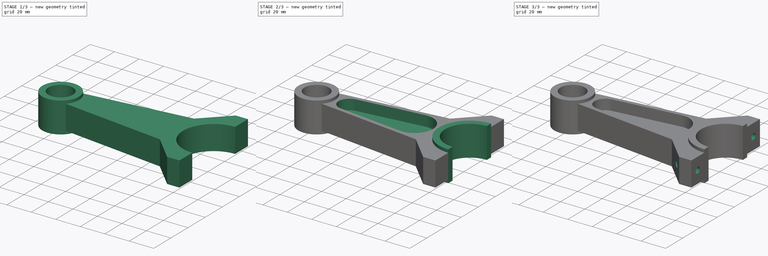
[diagram: build sequence overview — one tinted view per stage of 3, left to right]
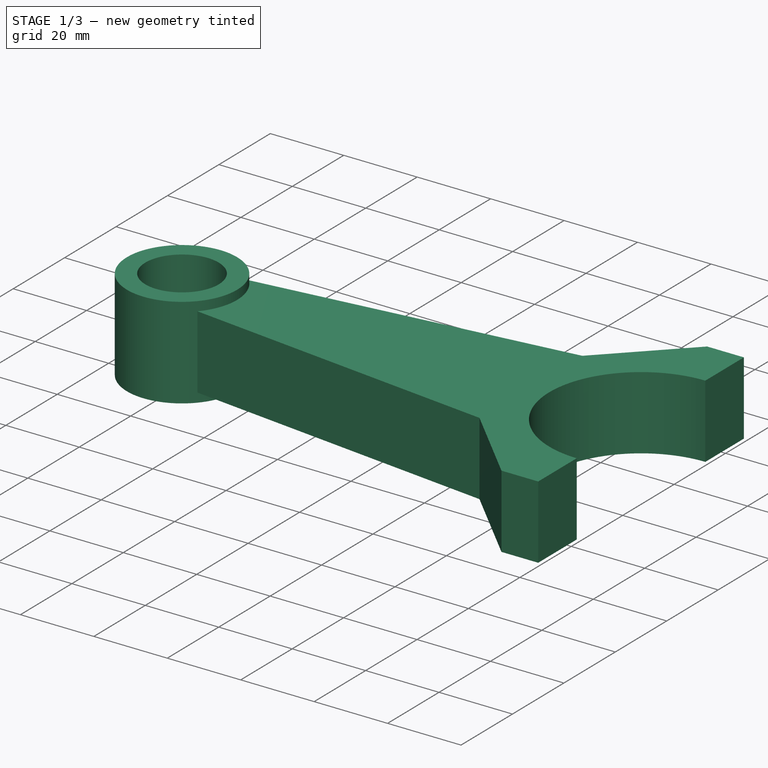
[diagram: stage 1 of 3 — iso view after this stage's code; geometry added in this stage tinted green]
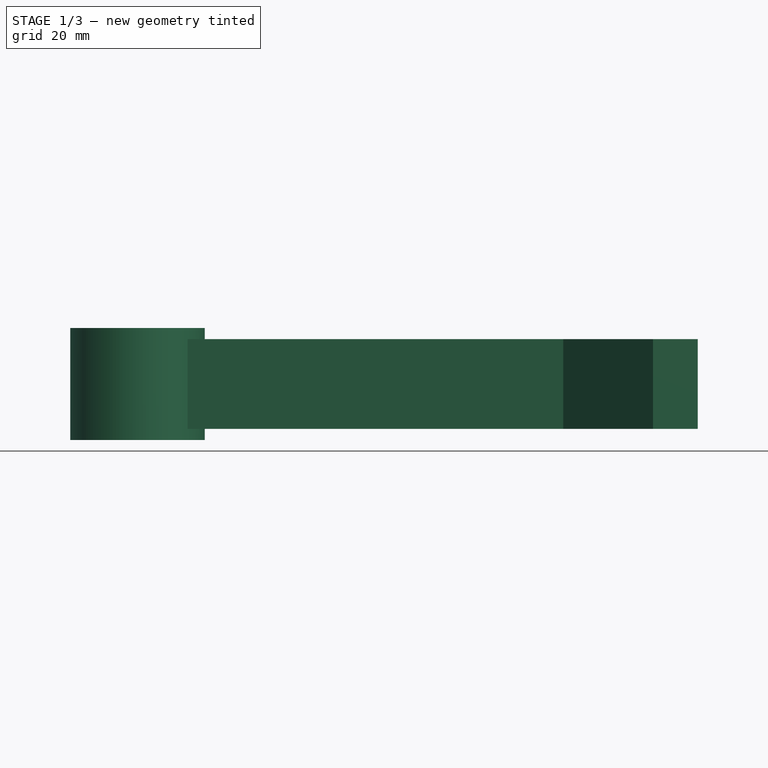
[diagram: stage 1 of 3 — front view after this stage's code; geometry added in this stage tinted green]
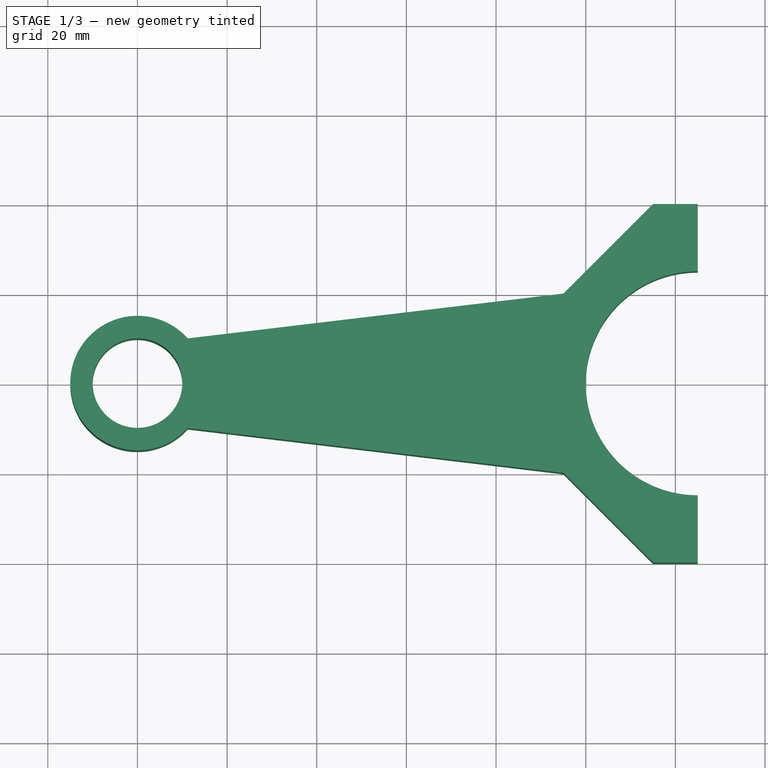
[diagram: stage 1 of 3 — top view after this stage's code; geometry added in this stage tinted green]
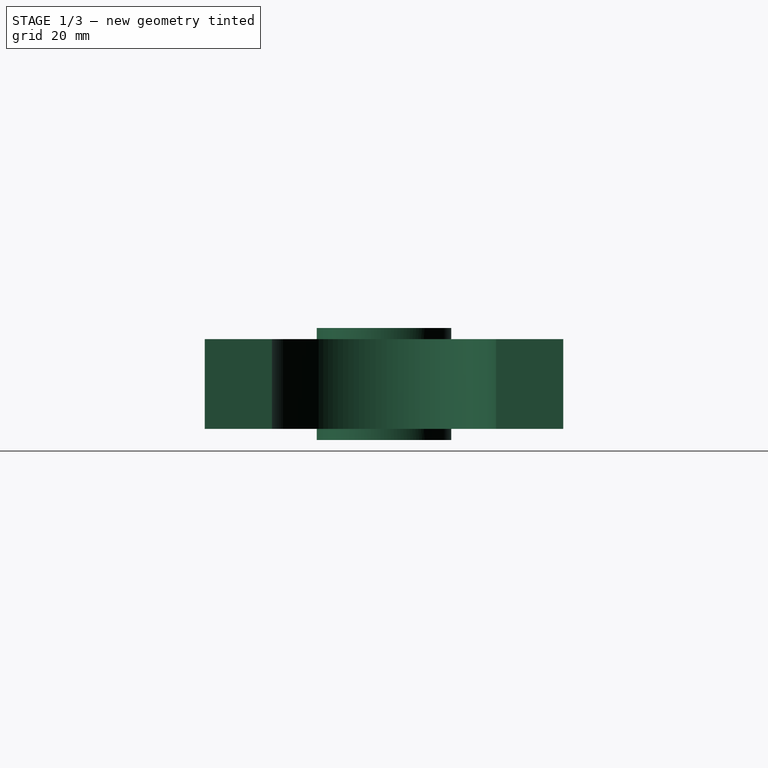
[diagram: stage 1 of 3 — right view after this stage's code; geometry added in this stage tinted green]
FCSTD DOCUMENT  (FreeCAD 0.18R16268 (Git))
Label: Bielle
License: All rights reserved
LicenseURL: http://en.wikipedia.org/wiki/All_rights_reserved
objects: Sketcher::SketchObject×6, PartDesign::Pad×3, PartDesign::CoordinateSystem×2, PartDesign::Plane×2, PartDesign::Pocket×2, App::DocumentObjectGroup×1, PartDesign::Mirrored×1, PartDesign::Body×1, App::Part×1
note: 22 computed .brp shape members not serialized (recipe doc carries the construction recipe); baked Part::Feature solids carry a one-line shape summary decoded from their .brp

FEATURE [App::DocumentObjectGroup] Constraints
FEATURE [PartDesign::CoordinateSystem] LCS_0
  AttacherType = Attacher::AttachEngine3D
FEATURE [PartDesign::Plane] DatumPlane
  AttachmentOffset = pos=(0,0,1.5) rot=(0,0,1;0rad)
  Length = 161.166
  MapMode = 5
  Placement = pos=(0,0,1.5) rot=(0,0,1;0rad)
  ResizeMode = 0
  Support = -> [LCS_0]
  Width = 101.166
FEATURE [Sketcher::SketchObject] Sketch  label="Length"
  MapMode = 5
  Support = -> [XY_Plane001]
  sketch-geometry (1):
    g0: LineSegment StartX=0 StartY=0 StartZ=0 EndX=125 EndY=0 EndZ=0
  constraints (3):
    c: Horizontal(g0)
    c: DistanceX(g0,g0) = 125
    c: Coincident(g-1,g0)
FEATURE [PartDesign::Plane] DatumPlane001
  Length = 88.9443
  MapMode = 7
  Placement = pos=(125,0,0) rot=(0.57735,-0.57735,-0.57735;2.0944rad)
  ResizeMode = 0
  Support = -> [Sketch]
  Width = 33.9443
FEATURE [Sketcher::SketchObject] Sketch006
  MapMode = 5
  Placement = pos=(125,0,0) rot=(0.57735,-0.57735,-0.57735;2.0944rad)
  Support = -> [DatumPlane001]
  sketch-geometry (2):
    g0: Circle CenterX=-32.5 CenterY=0 CenterZ=0 NormalX=0 NormalY=0 NormalZ=1 AngleXU=0 Radius=2.5
    g1: Circle CenterX=32.5 CenterY=0 CenterZ=0 NormalX=0 NormalY=0 NormalZ=1 AngleXU=0 Radius=2.5
  constraints (5):
    c: Symmetric(g0,g1,g-2)
    c: PointOnObject(g1,g-1)
    c: Equal(g0,g1)
    c: Diameter(g0) = 5
    c: DistanceX(g0,g1) = 65
FEATURE [Sketcher::SketchObject] Sketch001
  MapMode = 5
  Support = -> [XY_Plane001]
  sketch-geometry (2):
    g0: Circle CenterX=0 CenterY=0 CenterZ=0 NormalX=0 NormalY=0 NormalZ=1 AngleXU=0 Radius=10
    g1: Circle CenterX=0 CenterY=0 CenterZ=0 NormalX=0 NormalY=0 NormalZ=1 AngleXU=0 Radius=15
  constraints (4):
    c: Coincident(g0,g-1)
    c: Diameter(g0) = 20
    c: Diameter(g1) = 30
    c: Coincident(g1,g0)
FEATURE [PartDesign::Pad] Pad
  ClaimChildren = false
  Length = 25
  Length2 = 100
  Midplane = true
  Profile = -> Sketch001
  Type = 0
FEATURE [Sketcher::SketchObject] Sketch003
  ExternalGeometry = -> [Sketch]
  MapMode = 5
  Support = -> [XY_Plane001]
  sketch-geometry (4):
    g0: ArcOfCircle CenterX=125 CenterY=0 CenterZ=0 NormalX=0 NormalY=0 NormalZ=1 AngleXU=0 Radius=20 StartAngle=1.5708 EndAngle=4.71239
    g1: ArcOfCircle CenterX=125 CenterY=0 CenterZ=0 NormalX=0 NormalY=0 NormalZ=1 AngleXU=0 Radius=25 StartAngle=1.5708 EndAngle=4.71239
    g2: LineSegment StartX=125 StartY=25 StartZ=0 EndX=125 EndY=20 EndZ=0
    g3: LineSegment StartX=125 StartY=-20 StartZ=0 EndX=125 EndY=-25 EndZ=0
  constraints (12):
    c: Coincident(g0,g-3)
    c: Coincident(g1,g0)
    c: Coincident(g2,g1)
    c: Coincident(g2,g0)
    c: Coincident(g3,g0)
    c: Coincident(g3,g1)
    c: Vertical(g2)
    c: Vertical(g3)
    c: PointOnObject(g0,g2)
    c: PointOnObject(g0,g3)
    c: DistanceY(g2,g2) = 5
    c: Diameter(g0) = 40
FEATURE [Sketcher::SketchObject] Sketch004
  ExternalGeometry = -> [Sketch001,Sketch003]
  MapMode = 5
  Support = -> [XY_Plane001]
  sketch-geometry (10):
    g0: LineSegment StartX=125 StartY=25 StartZ=0 EndX=125 EndY=40 EndZ=0
    g1: LineSegment StartX=125 StartY=40 StartZ=0 EndX=115 EndY=40 EndZ=0
    g2: LineSegment StartX=115 StartY=40 StartZ=0 EndX=95 EndY=20 EndZ=0
    g3: LineSegment StartX=95 StartY=20 StartZ=0 EndX=11.1803 EndY=10 EndZ=0
    g4: LineSegment StartX=11.1803 StartY=-10 StartZ=0 EndX=95 EndY=-20 EndZ=0
    g5: LineSegment StartX=95 StartY=-20 StartZ=0 EndX=115 EndY=-40 EndZ=0
    g6: LineSegment StartX=115 StartY=-40 StartZ=0 EndX=125 EndY=-40 EndZ=0
    g7: LineSegment StartX=125 StartY=-40 StartZ=0 EndX=125 EndY=-25 EndZ=0
    g8: ArcOfCircle CenterX=125 CenterY=8e-16 CenterZ=0 NormalX=0 NormalY=0 NormalZ=1 AngleXU=0 Radius=25 StartAngle=1.5708 EndAngle=4.71239
    g9: ArcOfCircle CenterX=0 CenterY=-9e-16 CenterZ=0 NormalX=0 NormalY=0 NormalZ=1 AngleXU=0 Radius=15 StartAngle=5.55346 EndAngle=7.01291
  constraints (27):
    c: Coincident(g0,g1)
    c: Coincident(g1,g2)
    c: Coincident(g2,g3)
    c: PointOnObject(g3,g-3)
    c: Coincident(g4,g5)
    c: Coincident(g5,g6)
    c: Coincident(g6,g7)
    c: Coincident(g7,g-4)
    c: Vertical(g0)
    c: Symmetric(g3,g4,g-1)
    c: DistanceY(g4,g2) = 40
    c: Symmetric(g2,g4,g-1)
    c: Horizontal(g1)
    c: DistanceY(g6,g0) = 80
    c: Symmetric(g0,g6,g-1)
    c: Symmetric(g1,g5,g-1)
    c: DistanceX(g1,g1) = 10
    c: Angle(g2,g1) = 2.35619
    c: DistanceY(g4,g3) = 20
    c: Coincident(g8,g7)
    c: Coincident(g9,g3)
    c: Coincident(g9,g4)
    c: Coincident(g9,g-1)
    c: Parallel(g7,g0)
    c: Coincident(g0,g8)
    c: PointOnObject(g0,g-5)
    c: PointOnObject(g8,g7)
FEATURE [Sketcher::SketchObject] Sketch005
  ExternalGeometry = -> [Sketch004,Sketch001,Sketch003]
  MapMode = 5
  Placement = pos=(0,0,1.5) rot=(0,0,1;0rad)
  Support = -> [DatumPlane]
  sketch-geometry (8):
    g0: ArcOfCircle CenterX=26.7773 CenterY=0 CenterZ=0 NormalX=0 NormalY=0 NormalZ=1 AngleXU=0 Radius=8.77725 StartAngle=1.68954 EndAngle=4.59365
    g1: ArcOfCircle CenterX=79.9265 CenterY=0 CenterZ=0 NormalX=0 NormalY=0 NormalZ=1 AngleXU=0 Radius=15.0735 StartAngle=4.59365 EndAngle=7.97272
    g2: LineSegment StartX=25.7375 StartY=8.71545 StartZ=0 EndX=78.1408 EndY=14.9674 EndZ=0
    g3: LineSegment StartX=25.7375 StartY=-8.71545 StartZ=0 EndX=78.1408 EndY=-14.9674 EndZ=0
    g4: GeomPoint X=18 Y=0 Z=0
    g5: GeomPoint X=15 Y=0 Z=0
    g6: GeomPoint X=95 Y=0 Z=0
    g7: GeomPoint X=100 Y=0 Z=0
  constraints (18):
    c: PointOnObject(g0,g-1)
    c: PointOnObject(g1,g-1)
    c: Tangent(g2,g1) = 1.5708
    c: Tangent(g3,g1) = -1.5708
    c: Tangent(g2,g0) = 1.5708
    c: Tangent(g3,g0) = -1.5708
    c: PointOnObject(g5,g-4)
    c: Horizontal(g5,g0)
    c: Horizontal(g4,g0)
    c: PointOnObject(g4,g0)
    c: PointOnObject(g6,g1)
    c: Horizontal(g6,g1)
    c: Parallel(g2,g-5)
    c: Distance(g5,g4) = 3
    c: Distance(g0,g-5) = 3
    c: PointOnObject(g7,g-6)
    c: PointOnObject(g7,g-1)
    c: DistanceX(g6,g7) = 5
FEATURE [PartDesign::Pad] Pad001
  BaseFeature = -> Pad
  ClaimChildren = false
  Length = 20
  Length2 = 100
  Midplane = true
  Profile = -> Sketch004
  Type = 0
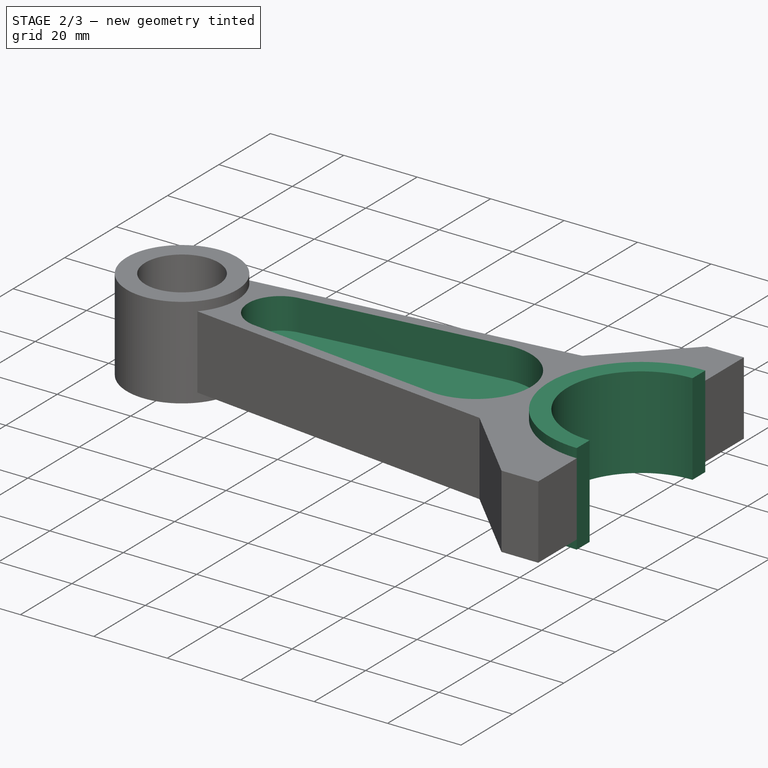
[diagram: stage 2 of 3 — iso view after this stage's code; geometry added in this stage tinted green]
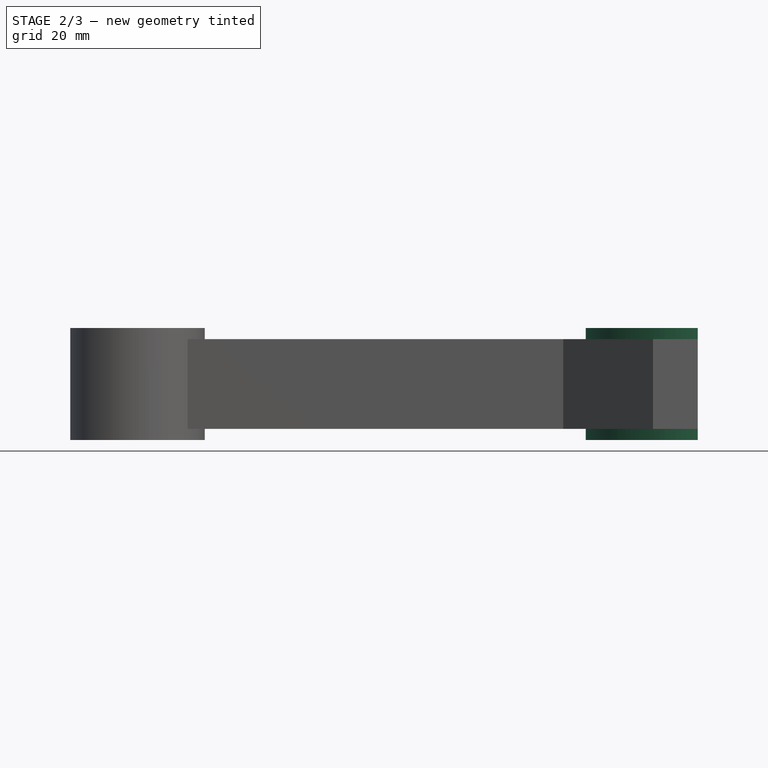
[diagram: stage 2 of 3 — front view after this stage's code; geometry added in this stage tinted green]
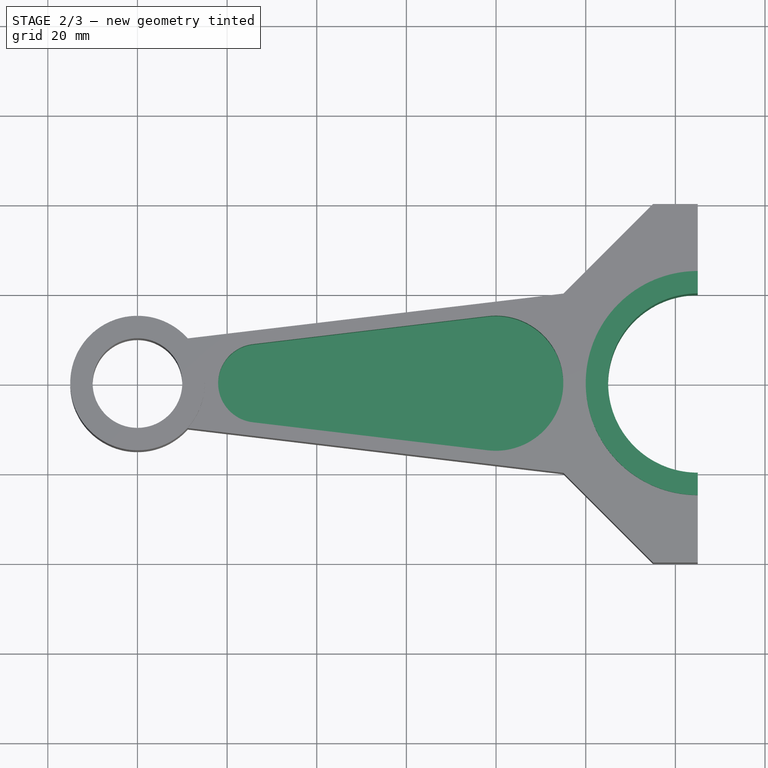
[diagram: stage 2 of 3 — top view after this stage's code; geometry added in this stage tinted green]
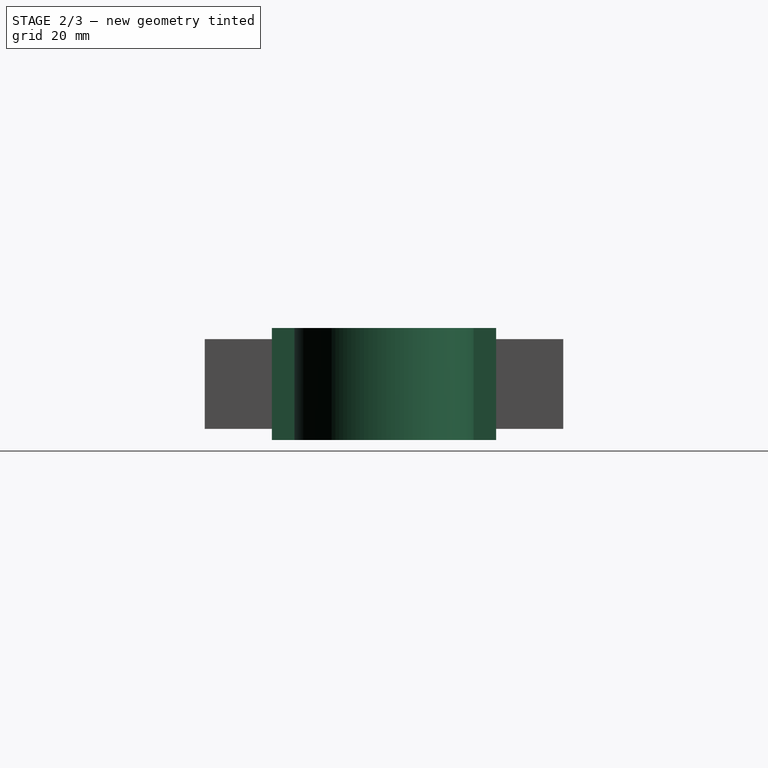
[diagram: stage 2 of 3 — right view after this stage's code; geometry added in this stage tinted green]
FEATURE [PartDesign::Pad] Pad002
  BaseFeature = -> Pad001
  ClaimChildren = false
  Length = 25
  Length2 = 100
  Midplane = true
  Profile = -> Sketch003
  Type = 0
FEATURE [PartDesign::Pocket] Pocket
  BaseFeature = -> Pad002
  ClaimChildren = false
  Length = 5
  Length2 = 100
  Profile = -> Sketch005
  Reversed = true
  Type = 1
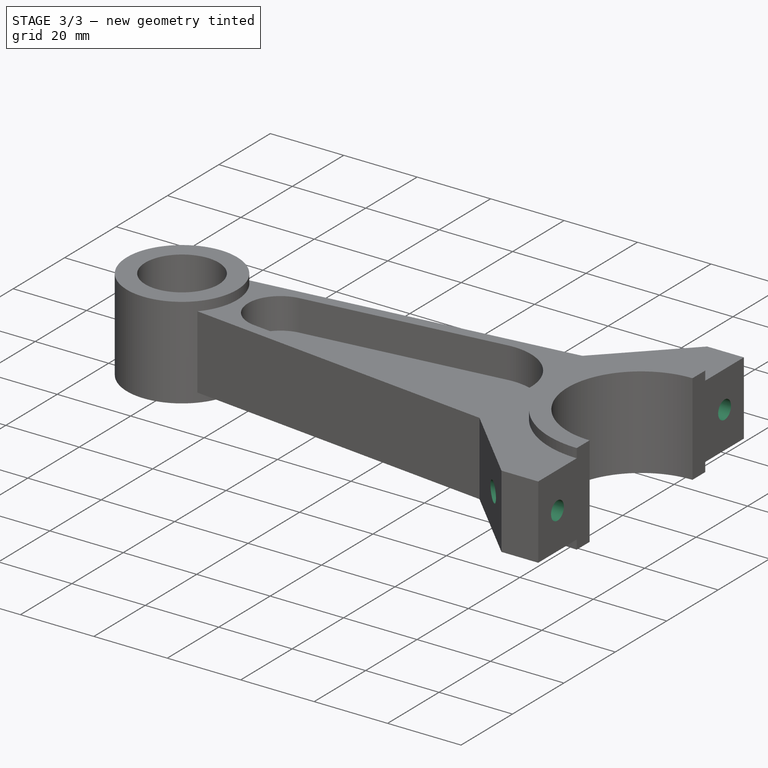
[diagram: stage 3 of 3 — iso view after this stage's code; geometry added in this stage tinted green]
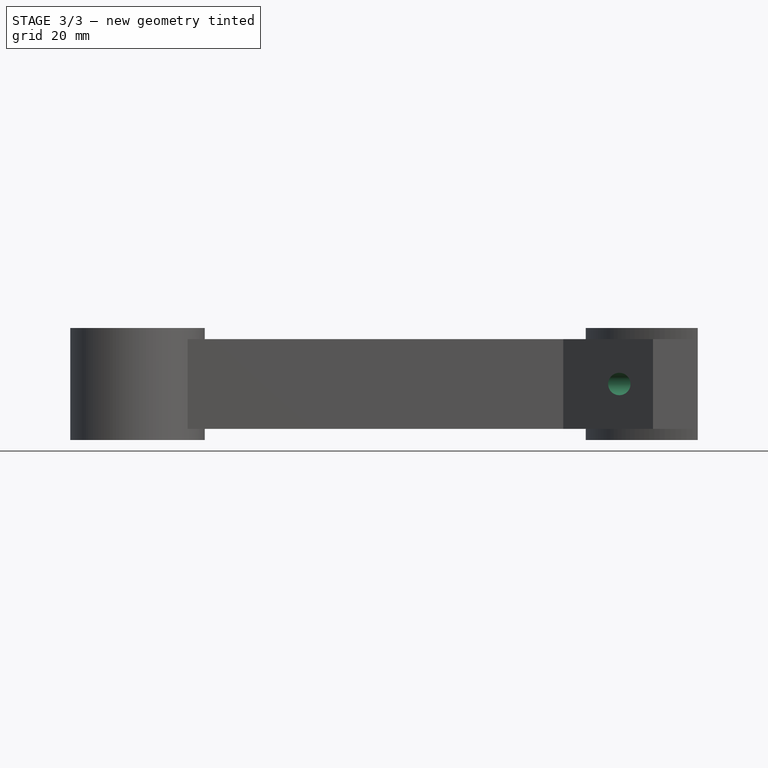
[diagram: stage 3 of 3 — front view after this stage's code; geometry added in this stage tinted green]
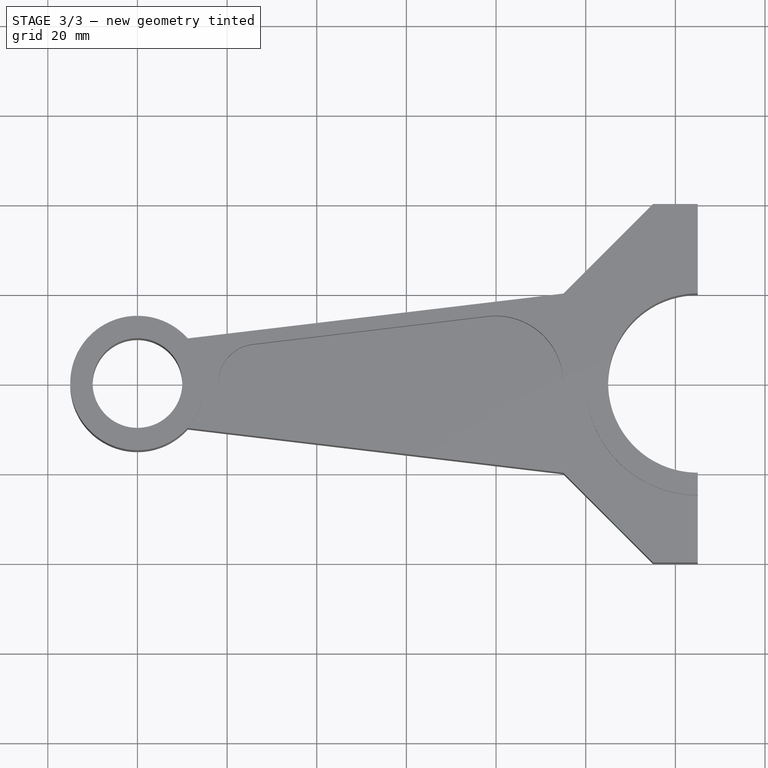
[diagram: stage 3 of 3 — top view after this stage's code; geometry added in this stage tinted green]
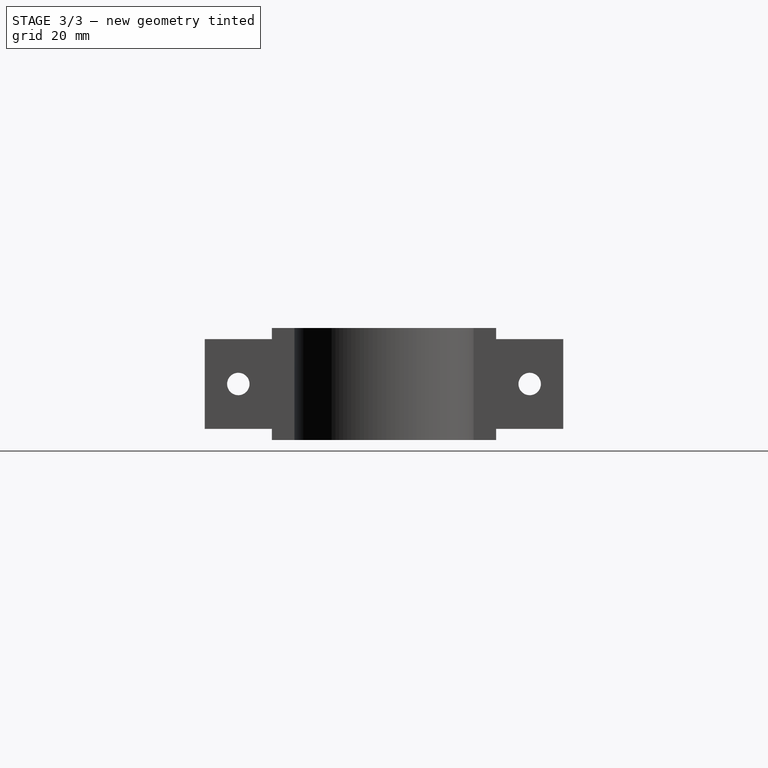
[diagram: stage 3 of 3 — right view after this stage's code; geometry added in this stage tinted green]
FEATURE [PartDesign::Mirrored] Mirrored
  BaseFeature = -> Pocket
  MirrorPlane = -> XY_Plane001
  Originals = -> [Pocket]
FEATURE [PartDesign::Pocket] Pocket001
  BaseFeature = -> Mirrored
  ClaimChildren = false
  Length = 5
  Length2 = 100
  Profile = -> Sketch006
  Reversed = true
  Type = 1
FEATURE [PartDesign::Body] Body
  Group = -> [Sketch,Sketch001,Sketch003,Sketch004,DatumPlane001,DatumPlane,Sketch005,Pad,Pad001,Pad002,Pocket,Mirrored,Sketch006,Pocket001]
  Origin = -> Origin001
  Tip = -> Pocket001
FEATURE [PartDesign::CoordinateSystem] LCS_1
  AttacherType = Attacher::AttachEngine3D
  MapMode = 1
  Placement = pos=(125,0,0) rot=(0,0,1;0rad)
  Support = -> [Sketch]
FEATURE [App::Part] Model
  Group = -> [Constraints,LCS_0,Body,LCS_1]
  Origin = -> Origin
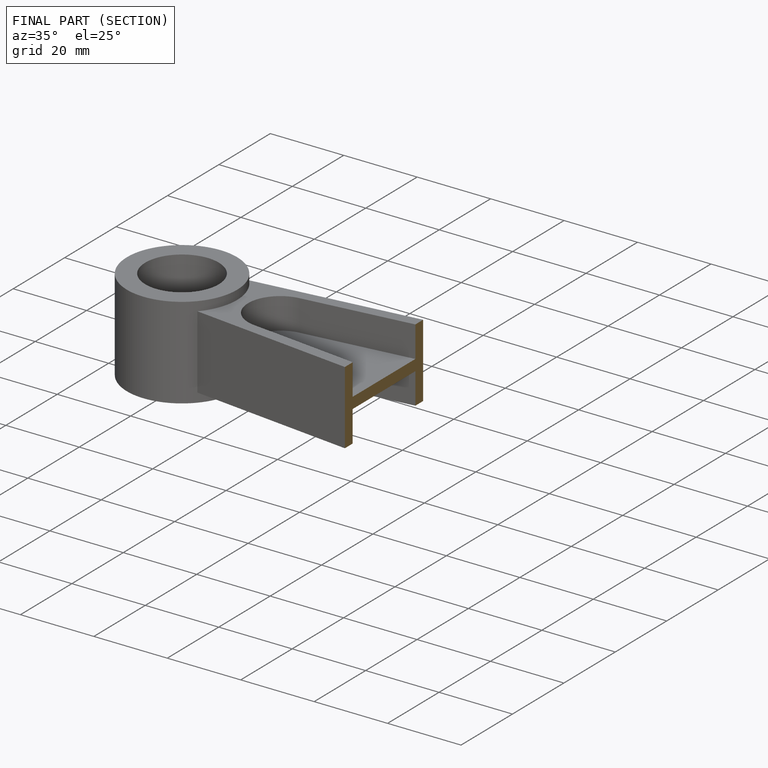
[diagram: finished part — half-section view (interior)]
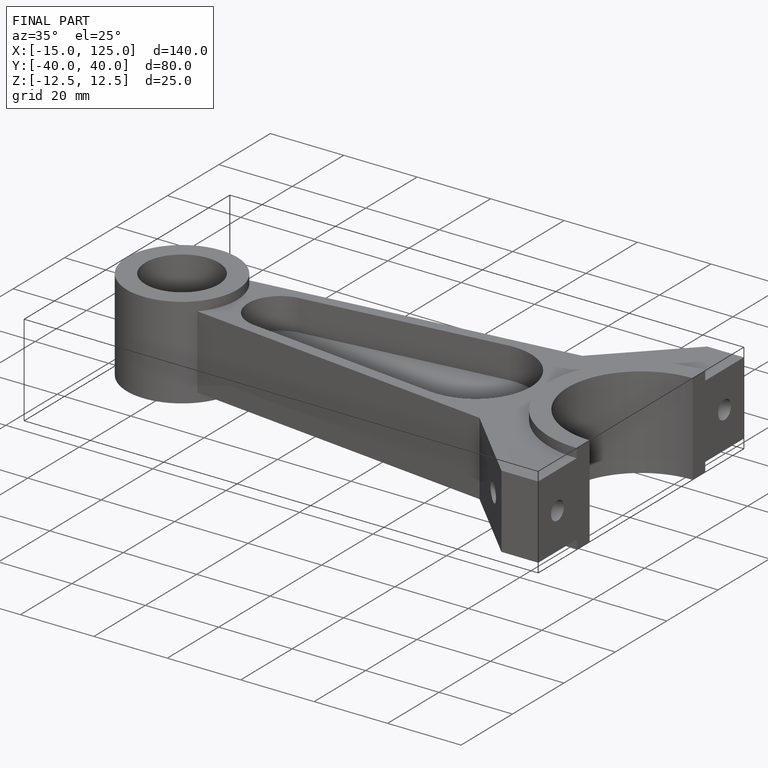
[diagram: finished part — iso view with bounding-box wireframe]
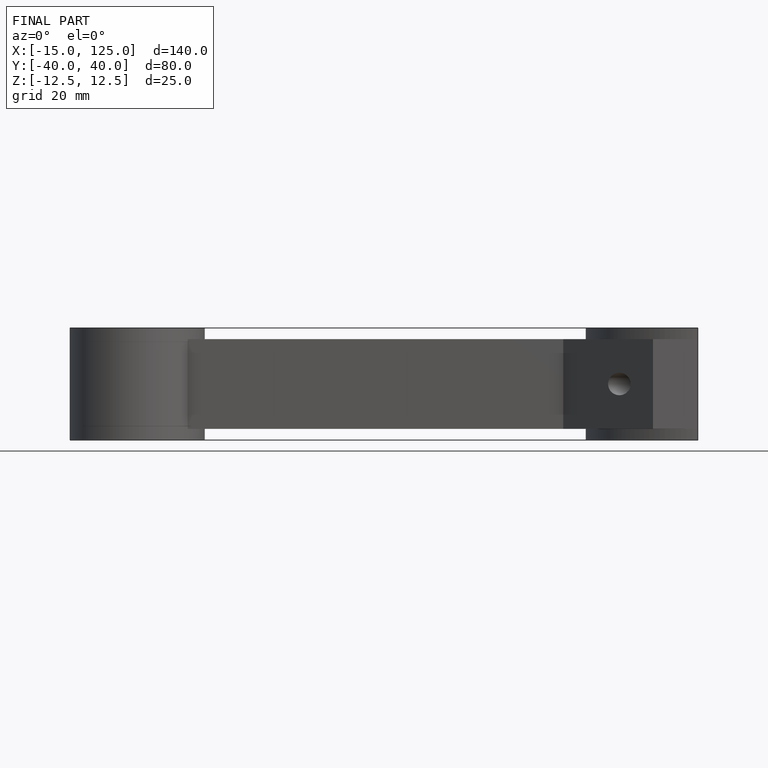
[diagram: finished part — front view with bounding-box wireframe]
